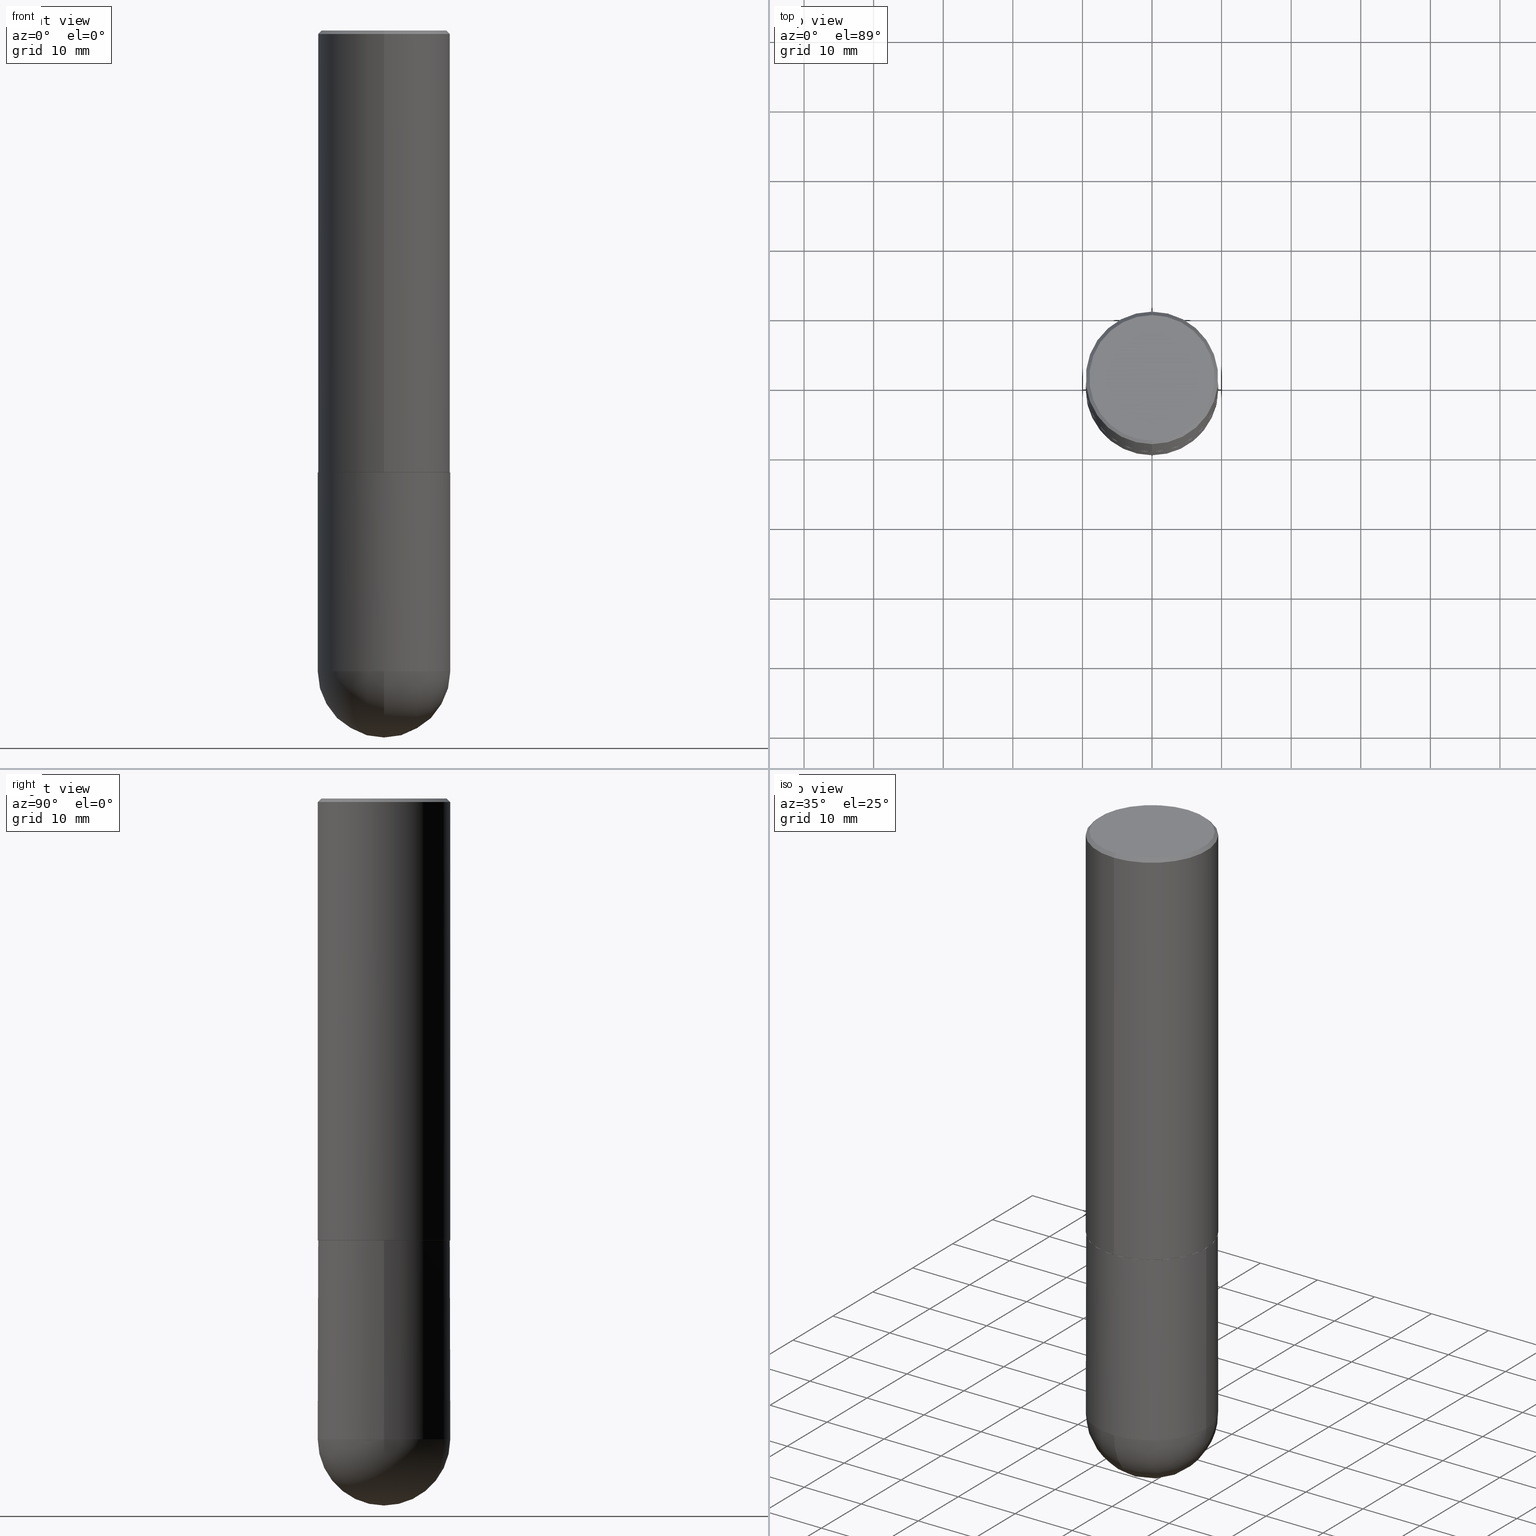
[diagram: canonical four-view strip — front | top / right | iso, engineering-drawing reading convention]
A machine part, canonical four-view strip (front | top / right | iso — engineering-drawing reading convention). The complete STEP part file that produces these views, byte-faithful:
ISO-10303-21;
HEADER;
FILE_DESCRIPTION (( 'STEP AP203' ),
    '1' );
FILE_NAME ('31165.STEP',
    '2024-02-21T16:49:30',
    ( '' ),
    ( '' ),
    'SwSTEP 2.0',
    'SolidWorks 2023',
    '' );
FILE_SCHEMA (( 'CONFIG_CONTROL_DESIGN' ));
ENDSEC;

DATA;
#1 = APPROVAL_PERSON_ORGANIZATION ( #397, #105, #244 ) ;
#2 = DIRECTION ( 'NONE',  ( -2.445468806185136597E-29, 3.491481338843145583E-15, 1.000000000000000000 ) ) ;
#3 = CARTESIAN_POINT ( 'NONE',  ( -0.3750000000000001110, 2.664535259100376486E-15, -1.844600658845590159E-29 ) ) ;
#4 = DIRECTION ( 'NONE',  ( 1.000000000000000000, -6.982962677686265922E-15, 4.883557194083112340E-29 ) ) ;
#5 = DIRECTION ( 'NONE',  ( -1.000000000000000000, 6.982962677686266711E-15, -4.883557194083113462E-29 ) ) ;
#6 = PRODUCT_RELATED_PRODUCT_CATEGORY ( 'detail', '', ( #218 ) ) ;
#7 = CC_DESIGN_APPROVAL ( #119, ( #386 ) ) ;
#8 = CARTESIAN_POINT ( 'NONE',  ( 4.891158429268078912E-31, -6.982646455320575000E-17, -0.02000000000000008715 ) ) ;
#9 = DIRECTION ( 'NONE',  ( -2.445468806185136597E-29, 3.491481338843145583E-15, 1.000000000000000000 ) ) ;
#10 = ORIENTED_EDGE ( 'NONE', *, *, #384, .F. ) ;
#11 = CLOSED_SHELL ( 'NONE', ( #18, #289, #12, #250, #148 ) ) ;
#12 = ADVANCED_FACE ( 'NONE', ( #86 ), #46, .T. ) ;
#13 = FACE_OUTER_BOUND ( 'NONE', #370, .T. ) ;
#14 = VERTEX_POINT ( 'NONE', #249 ) ;
#15 = DIRECTION ( 'NONE',  ( -6.982962677686266711E-15, -1.000000000000000000, 2.913971193241878794E-15 ) ) ;
#16 = ORIENTED_EDGE ( 'NONE', *, *, #225, .T. ) ;
#17 = ORIENTED_EDGE ( 'NONE', *, *, #356, .T. ) ;
#18 = ADVANCED_FACE ( 'NONE', ( #180 ), #347, .T. ) ;
#19 = AXIS2_PLACEMENT_3D ( 'NONE', #8, #39, #65 ) ;
#20 = CALENDAR_DATE ( 2024, 21, 2 ) ;
#21 = ORIENTED_EDGE ( 'NONE', *, *, #126, .F. ) ;
#22 = PERSON_AND_ORGANIZATION ( #143, #229 ) ;
#23 = CARTESIAN_POINT ( 'NONE',  ( 6.113948036585074240E-29, -8.728308069150681957E-15, -2.500000000000000000 ) ) ;
#24 = DIRECTION ( 'NONE',  ( -6.982962677686266711E-15, -1.000000000000000000, 2.921762560068730595E-15 ) ) ;
#25 = VECTOR ( 'NONE', #252, 39.37007874015748143 ) ;
#26 = CC_DESIGN_DATE_AND_TIME_ASSIGNMENT ( #172, #303, ( #386 ) ) ;
#27 = DIRECTION ( 'NONE',  ( 6.982962677686266711E-15, 1.000000000000000000, -2.913971193241878005E-15 ) ) ;
#28 = CARTESIAN_POINT ( 'NONE',  ( -2.572686749164323547E-15, -0.3750000000000001110, -0.01999999999999877570 ) ) ;
#29 = DIRECTION ( 'NONE',  ( -2.445579214634029192E-29, 3.491323227660272783E-15, 1.000000000000000000 ) ) ;
#30 = VECTOR ( 'NONE', #394, 39.37007874015748143 ) ;
#31 = DIRECTION ( 'NONE',  ( -2.445579214634029192E-29, 3.491323227660272783E-15, 1.000000000000000000 ) ) ;
#32 = EDGE_CURVE ( 'NONE', #393, #52, #278, .T. ) ;
#33 = DIRECTION ( 'NONE',  ( 6.982962677686265922E-15, 1.000000000000000000, 0.000000000000000000 ) ) ;
#34 = CIRCLE ( 'NONE', #272, 0.3750000000000002776 ) ;
#35 = ORIENTED_EDGE ( 'NONE', *, *, #294, .T. ) ;
#36 = CIRCLE ( 'NONE', #115, 0.3750000000000000555 ) ;
#37 = APPROVAL_PERSON_ORGANIZATION ( #82, #119, #375 ) ;
#38 = CARTESIAN_POINT ( 'NONE',  ( 6.111502457370440261E-29, -8.724816745923021924E-15, -2.499000000000000110 ) ) ;
#39 = DIRECTION ( 'NONE',  ( 2.445579214634029192E-29, -3.491323227660272783E-15, -1.000000000000000000 ) ) ;
#40 = ORIENTED_EDGE ( 'NONE', *, *, #233, .F. ) ;
#41 = ADVANCED_FACE ( 'NONE', ( #251 ), #302, .T. ) ;
#42 = CARTESIAN_POINT ( 'NONE',  ( 2.664535259100376486E-15, 0.3750000000000001665, -1.309246210372602885E-15 ) ) ;
#43 = VERTEX_POINT ( 'NONE', #110 ) ;
#44 = LOCAL_TIME ( 11, 49, 30.00000000000000000, #207 ) ;
#45 = APPROVAL_DATE_TIME ( #202, #119 ) ;
#46 = SPHERICAL_SURFACE ( 'NONE', #59, 0.3750000000000003886 ) ;
#47 = PERSON_AND_ORGANIZATION_ROLE ( 'creator' ) ;
#48 = DIRECTION ( 'NONE',  ( -6.982962677686266711E-15, -1.000000000000000000, 3.491323227660273572E-15 ) ) ;
#49 = CONICAL_SURFACE ( 'NONE', #285, 0.3739999999999999991, 0.7853981633976873100 ) ;
#50 = APPLICATION_PROTOCOL_DEFINITION ( 'international standard', 'config_control_design', 1994, #306 ) ;
#51 = ORIENTED_EDGE ( 'NONE', *, *, #214, .T. ) ;
#52 = VERTEX_POINT ( 'NONE', #211 ) ;
#53 = EDGE_CURVE ( 'NONE', #228, #52, #206, .T. ) ;
#54 = AXIS2_PLACEMENT_3D ( 'NONE', #291, #293, #168 ) ;
#55 = CARTESIAN_POINT ( 'NONE',  ( 2.664535259100408040E-15, 0.3749999999999915623, -2.499000000000001442 ) ) ;
#56 = DIRECTION ( 'NONE',  ( -6.982962677686266711E-15, -1.000000000000000000, 2.913971193241878794E-15 ) ) ;
#57 = EDGE_CURVE ( 'NONE', #178, #43, #156, .T. ) ;
#58 = DIRECTION ( 'NONE',  ( 2.438088387897960049E-29, -3.491481338843145188E-15, -1.000000000000000000 ) ) ;
#59 = AXIS2_PLACEMENT_3D ( 'NONE', #83, #114, #27 ) ;
#60 = AXIS2_PLACEMENT_3D ( 'NONE', #407, #85, #179 ) ;
#61 = CARTESIAN_POINT ( 'NONE',  ( 2.618611004132411153E-15, 0.3749999999999912847, -2.500000000000001332 ) ) ;
#62 = FACE_OUTER_BOUND ( 'NONE', #390, .T. ) ;
#63 = EDGE_CURVE ( 'NONE', #14, #398, #313, .T. ) ;
#64 =( LENGTH_UNIT ( ) NAMED_UNIT ( * ) SI_UNIT ( $, .METRE. ) );
#65 = DIRECTION ( 'NONE',  ( 6.982962677686265922E-15, 1.000000000000000000, -3.494488891895536035E-15 ) ) ;
#66 = AXIS2_PLACEMENT_3D ( 'NONE', #213, #80, #349 ) ;
#67 = ORIENTED_EDGE ( 'NONE', *, *, #199, .F. ) ;
#68 = AXIS2_PLACEMENT_3D ( 'NONE', #94, #5, #127 ) ;
#69 = CARTESIAN_POINT ( 'NONE',  ( 8.864824422421120163E-29, -1.265661985330640259E-14, -3.624999999999999556 ) ) ;
#70 = VERTEX_POINT ( 'NONE', #314 ) ;
#71 = CARTESIAN_POINT ( 'NONE',  ( -0.3750000000000001110, -8.028126341106758858E-15, -3.624999999999999556 ) ) ;
#72 = LINE ( 'NONE', #268, #81 ) ;
#73 = CIRCLE ( 'NONE', #151, 0.3750000000000003886 ) ;
#74 = EDGE_CURVE ( 'NONE', #43, #178, #216, .T. ) ;
#75 = CALENDAR_DATE ( 2024, 21, 2 ) ;
#76 = CARTESIAN_POINT ( 'NONE',  ( -4.800560604020196118E-45, 6.853308468732078299E-31, 1.962954450746990007E-16 ) ) ;
#77 = PERSON_AND_ORGANIZATION_ROLE ( 'design_supplier' ) ;
#78 = DIRECTION ( 'NONE',  ( -2.445579214634029192E-29, 3.491323227660272783E-15, 1.000000000000000000 ) ) ;
#79 = APPLICATION_PROTOCOL_DEFINITION ( 'international standard', 'config_control_design', 1994, #340 ) ;
#80 = DIRECTION ( 'NONE',  ( -1.000000000000000000, 7.105427357601001070E-15, -4.926315508542082329E-29 ) ) ;
#81 = VECTOR ( 'NONE', #135, 39.37007874015748143 ) ;
#82 = PERSON_AND_ORGANIZATION ( #143, #229 ) ;
#83 = CARTESIAN_POINT ( 'NONE',  ( 8.533704644507233916E-29, -1.313080222144645289E-14, -3.624999999999999556 ) ) ;
#84 = CC_DESIGN_PERSON_AND_ORGANIZATION_ASSIGNMENT ( #22, #142, ( #218 ) ) ;
#85 = DIRECTION ( 'NONE',  ( 0.000000000000000000, 0.000000000000000000, 1.000000000000000000 ) ) ;
#86 = FACE_OUTER_BOUND ( 'NONE', #174, .T. ) ;
#87 = LINE ( 'NONE', #120, #25 ) ;
#88 = CIRCLE ( 'NONE', #400, 0.3750000000000001110 ) ;
#89 = CARTESIAN_POINT ( 'NONE',  ( 8.864824422421120163E-29, -1.265661985330640259E-14, -3.624999999999999556 ) ) ;
#90 = DIRECTION ( 'NONE',  ( 6.982962677686265922E-15, 1.000000000000000000, -3.494488891895536035E-15 ) ) ;
#91 = CARTESIAN_POINT ( 'NONE',  ( 6.113948036585074240E-29, -8.728308069150681957E-15, -2.500000000000000000 ) ) ;
#92 = AXIS2_PLACEMENT_3D ( 'NONE', #117, #78, #374 ) ;
#93 = AXIS2_PLACEMENT_3D ( 'NONE', #323, #287, #155 ) ;
#94 = CARTESIAN_POINT ( 'NONE',  ( 8.533704644507233916E-29, -1.313080222144645289E-14, -3.624999999999999556 ) ) ;
#95 = EDGE_CURVE ( 'NONE', #98, #332, #173, .T. ) ;
#96 = DIRECTION ( 'NONE',  ( -2.445579214634029192E-29, 3.491323227660272783E-15, 1.000000000000000000 ) ) ;
#97 = CYLINDRICAL_SURFACE ( 'NONE', #247, 0.3750000000000001665 ) ;
#98 = VERTEX_POINT ( 'NONE', #144 ) ;
#99 = CONICAL_SURFACE ( 'NONE', #343, 0.3750000000000000555, 0.7853981633974479459 ) ;
#100 = EDGE_LOOP ( 'NONE', ( #107, #35 ) ) ;
#101 = ORIENTED_EDGE ( 'NONE', *, *, #233, .T. ) ;
#102 = DESIGN_CONTEXT ( 'detailed design', #340, 'design' ) ;
#103 = CYLINDRICAL_SURFACE ( 'NONE', #366, 0.3750000000000001665 ) ;
#104 = ORIENTED_EDGE ( 'NONE', *, *, #294, .F. ) ;
#105 = APPROVAL ( #241, 'UNSPECIFIED' ) ;
#106 = APPROVAL_STATUS ( 'not_yet_approved' ) ;
#107 = ORIENTED_EDGE ( 'NONE', *, *, #141, .T. ) ;
#108 = CIRCLE ( 'NONE', #93, 0.3739999999999999991 ) ;
#109 = APPROVAL_DATE_TIME ( #113, #130 ) ;
#110 = CARTESIAN_POINT ( 'NONE',  ( -2.504081769186607821E-15, -0.3549999999999997602, 1.435715190894094620E-15 ) ) ;
#111 = DATE_TIME_ROLE ( 'creation_date' ) ;
#112 = DIRECTION ( 'NONE',  ( -2.445579214634028911E-29, 3.491323227660273177E-15, 1.000000000000000000 ) ) ;
#113 = DATE_AND_TIME ( #341, #44 ) ;
#114 = DIRECTION ( 'NONE',  ( -1.000000000000000000, 6.982962677686266711E-15, -4.883557194083113462E-29 ) ) ;
#115 = AXIS2_PLACEMENT_3D ( 'NONE', #378, #215, #351 ) ;
#116 = MECHANICAL_CONTEXT ( 'NONE', #306, 'mechanical' ) ;
#117 = CARTESIAN_POINT ( 'NONE',  ( 4.891158429268078912E-31, -6.982646455320575000E-17, -0.02000000000000008715 ) ) ;
#118 = DIRECTION ( 'NONE',  ( 1.000000000000000000, -6.982962677686265922E-15, 4.876176775795935793E-29 ) ) ;
#119 = APPROVAL ( #106, 'UNSPECIFIED' ) ;
#120 = CARTESIAN_POINT ( 'NONE',  ( 0.3750000000000001110, -2.618611004132350411E-15, 1.828566290923476483E-29 ) ) ;
#121 = AXIS2_PLACEMENT_3D ( 'NONE', #324, #286, #185 ) ;
#122 = CIRCLE ( 'NONE', #175, 0.3750000000000002776 ) ;
#123 = DIRECTION ( 'NONE',  ( 1.000000000000000000, -6.982962677686265922E-15, 0.000000000000000000 ) ) ;
#124 = CARTESIAN_POINT ( 'NONE',  ( 8.864824422421120163E-29, -1.265661985330640259E-14, -3.624999999999999556 ) ) ;
#125 = FACE_OUTER_BOUND ( 'NONE', #140, .T. ) ;
#126 = EDGE_CURVE ( 'NONE', #228, #296, #34, .T. ) ;
#127 = DIRECTION ( 'NONE',  ( 6.982962677686266711E-15, 1.000000000000000000, -2.913971193241878005E-15 ) ) ;
#128 = CARTESIAN_POINT ( 'NONE',  ( 2.660982545421636724E-15, 0.3739999999999912839, -2.500000000000001332 ) ) ;
#129 = ORIENTED_EDGE ( 'NONE', *, *, #384, .T. ) ;
#130 = APPROVAL ( #236, 'UNSPECIFIED' ) ;
#131 = CARTESIAN_POINT ( 'NONE',  ( 2.618611004132350411E-15, 0.3749999999999999445, -0.02000000000000139513 ) ) ;
#132 = EDGE_LOOP ( 'NONE', ( #67, #51, #101, #270, #104 ) ) ;
#133 =( NAMED_UNIT ( * ) SI_UNIT ( $, .STERADIAN. ) SOLID_ANGLE_UNIT ( ) );
#134 = ORIENTED_EDGE ( 'NONE', *, *, #356, .F. ) ;
#135 = DIRECTION ( 'NONE',  ( 4.937700262164545676E-15, 0.7071067811865447972, -0.7071067811865502373 ) ) ;
#136 = ORIENTED_EDGE ( 'NONE', *, *, #95, .F. ) ;
#137 = EDGE_CURVE ( 'NONE', #52, #393, #253, .T. ) ;
#138 = ORIENTED_EDGE ( 'NONE', *, *, #388, .F. ) ;
#139 = AXIS2_PLACEMENT_3D ( 'NONE', #321, #31, #219 ) ;
#140 = EDGE_LOOP ( 'NONE', ( #404, #410, #337, #136 ) ) ;
#141 = EDGE_CURVE ( 'NONE', #246, #292, #379, .T. ) ;
#142 = PERSON_AND_ORGANIZATION_ROLE ( 'design_owner' ) ;
#143 = PERSON ( 'UNSPECIFIED', 'UNSPECIFIED', 'UNSPECIFIED', ('UNSPECIFIED'), ('UNSPECIFIED'), ('UNSPECIFIED') ) ;
#144 = CARTESIAN_POINT ( 'NONE',  ( 2.618611004132438763E-15, 0.3749999999999873990, -3.625000000000000888 ) ) ;
#145 = VERTEX_POINT ( 'NONE', #382 ) ;
#146 = VECTOR ( 'NONE', #112, 39.37007874015748143 ) ;
#147 = DIRECTION ( 'NONE',  ( -2.445468806185136597E-29, 3.491481338843145583E-15, 1.000000000000000000 ) ) ;
#148 = ADVANCED_FACE ( 'NONE', ( #222 ), #385, .T. ) ;
#149 = FACE_OUTER_BOUND ( 'NONE', #176, .T. ) ;
#150 = CARTESIAN_POINT ( 'NONE',  ( 6.113948036585074240E-29, -8.728308069150681957E-15, -2.500000000000000000 ) ) ;
#151 = AXIS2_PLACEMENT_3D ( 'NONE', #154, #4, #33 ) ;
#152 = DIRECTION ( 'NONE',  ( -2.445468806185136597E-29, 3.491481338843145583E-15, 1.000000000000000000 ) ) ;
#153 = EDGE_CURVE ( 'NONE', #70, #246, #87, .T. ) ;
#154 = CARTESIAN_POINT ( 'NONE',  ( 8.533704644507233916E-29, -1.313080222144645289E-14, -3.624999999999999556 ) ) ;
#155 = DIRECTION ( 'NONE',  ( -6.982962677686266711E-15, -1.000000000000000000, 2.921762560068730595E-15 ) ) ;
#156 = CIRCLE ( 'NONE', #399, 0.3549999999999997602 ) ;
#157 = CIRCLE ( 'NONE', #181, 0.3739999999999999991 ) ;
#158 = LINE ( 'NONE', #227, #187 ) ;
#159 = EDGE_LOOP ( 'NONE', ( #134, #16, #238, #10 ) ) ;
#160 = PRODUCT_DEFINITION ( 'UNKNOWN', '', #408, #102 ) ;
#161 = LINE ( 'NONE', #42, #304 ) ;
#162 = ORIENTED_EDGE ( 'NONE', *, *, #277, .T. ) ;
#163 = ORIENTED_EDGE ( 'NONE', *, *, #299, .F. ) ;
#164 = UNCERTAINTY_MEASURE_WITH_UNIT (LENGTH_MEASURE( 1.000000000000000082E-05 ), #325, 'distance_accuracy_value', 'NONE');
#165 = LINE ( 'NONE', #196, #30 ) ;
#166 = LOCAL_TIME ( 11, 49, 30.00000000000000000, #338 ) ;
#167 = CC_DESIGN_DATE_AND_TIME_ASSIGNMENT ( #346, #111, ( #160 ) ) ;
#168 = DIRECTION ( 'NONE',  ( 6.982962677686265922E-15, 1.000000000000000000, -3.491323227660273177E-15 ) ) ;
#169 = ORIENTED_EDGE ( 'NONE', *, *, #74, .T. ) ;
#170 = COORDINATED_UNIVERSAL_TIME_OFFSET ( 5, 0, .BEHIND. ) ;
#171 = CARTESIAN_POINT ( 'NONE',  ( -4.800560604020196118E-45, 6.853308468732078299E-31, 1.962954450746990007E-16 ) ) ;
#172 = DATE_AND_TIME ( #204, #182 ) ;
#173 = CIRCLE ( 'NONE', #327, 0.3750000000000001110 ) ;
#174 = EDGE_LOOP ( 'NONE', ( #197, #162, #409, #40 ) ) ;
#175 = AXIS2_PLACEMENT_3D ( 'NONE', #38, #194, #15 ) ;
#176 = EDGE_LOOP ( 'NONE', ( #203, #17, #21, #263 ) ) ;
#177 = APPROVAL_DATE_TIME ( #275, #105 ) ;
#178 = VERTEX_POINT ( 'NONE', #224 ) ;
#179 = DIRECTION ( 'NONE',  ( 1.000000000000000000, 0.000000000000000000, 0.000000000000000000 ) ) ;
#180 = FACE_OUTER_BOUND ( 'NONE', #395, .T. ) ;
#181 = AXIS2_PLACEMENT_3D ( 'NONE', #150, #284, #288 ) ;
#182 = LOCAL_TIME ( 11, 49, 30.00000000000000000, #401 ) ;
#183 = PRODUCT_DEFINITION_SHAPE ( 'NONE', 'NONE',  #160 ) ;
#184 = LINE ( 'NONE', #28, #392 ) ;
#185 = DIRECTION ( 'NONE',  ( 1.000000000000000000, -6.982962677686264344E-15, 0.000000000000000000 ) ) ;
#186 = DIRECTION ( 'NONE',  ( -1.000000000000000000, 6.982962677686265922E-15, -4.876176775795935793E-29 ) ) ;
#187 = VECTOR ( 'NONE', #298, 39.37007874015748143 ) ;
#188 = DIRECTION ( 'NONE',  ( -2.445579214634029192E-29, 3.491323227660272783E-15, 1.000000000000000000 ) ) ;
#189 = PLANE ( 'NONE',  #237 ) ;
#190 = LENGTH_MEASURE_WITH_UNIT ( LENGTH_MEASURE( 0.02539999999999999897 ), #64 );
#191 = ORIENTED_EDGE ( 'NONE', *, *, #95, .T. ) ;
#192 = AXIS2_PLACEMENT_3D ( 'NONE', #171, #208, #344 ) ;
#193 = CIRCLE ( 'NONE', #209, 0.3750000000000001110 ) ;
#194 = DIRECTION ( 'NONE',  ( -2.445579214634029192E-29, 3.491323227660272783E-15, 1.000000000000000000 ) ) ;
#195 = ORIENTED_EDGE ( 'NONE', *, *, #225, .F. ) ;
#196 = CARTESIAN_POINT ( 'NONE',  ( -2.611628041454602471E-15, -0.3740000000000087699, -2.499999999999999112 ) ) ;
#197 = ORIENTED_EDGE ( 'NONE', *, *, #63, .F. ) ;
#198 = ORIENTED_EDGE ( 'NONE', *, *, #199, .T. ) ;
#199 = EDGE_CURVE ( 'NONE', #332, #292, #380, .T. ) ;
#200 = CARTESIAN_POINT ( 'NONE',  ( 6.113948036585074240E-29, -8.728308069150681957E-15, -2.500000000000000000 ) ) ;
#201 = ORIENTED_EDGE ( 'NONE', *, *, #57, .F. ) ;
#202 = DATE_AND_TIME ( #20, #239 ) ;
#203 = ORIENTED_EDGE ( 'NONE', *, *, #283, .T. ) ;
#204 = CALENDAR_DATE ( 2024, 21, 2 ) ;
#205 = CC_DESIGN_PERSON_AND_ORGANIZATION_ASSIGNMENT ( #369, #300, ( #160 ) ) ;
#206 = LINE ( 'NONE', #342, #146 ) ;
#207 = COORDINATED_UNIVERSAL_TIME_OFFSET ( 5, 0, .BEHIND. ) ;
#208 = DIRECTION ( 'NONE',  ( -2.445579214634029192E-29, 3.491323227660272783E-15, 1.000000000000000000 ) ) ;
#209 = AXIS2_PLACEMENT_3D ( 'NONE', #124, #2, #123 ) ;
#210 = PERSON_AND_ORGANIZATION_ROLE ( 'classification_officer' ) ;
#211 = CARTESIAN_POINT ( 'NONE',  ( -2.572686749164323547E-15, -0.3750000000000001110, -0.01999999999999877570 ) ) ;
#212 = COORDINATED_UNIVERSAL_TIME_OFFSET ( 5, 0, .BEHIND. ) ;
#213 = CARTESIAN_POINT ( 'NONE',  ( 8.533704644507233916E-29, -1.313080222144645289E-14, -3.624999999999999556 ) ) ;
#214 = EDGE_CURVE ( 'NONE', #332, #398, #88, .T. ) ;
#215 = DIRECTION ( 'NONE',  ( -2.445468806185136597E-29, 3.491481338843145583E-15, 1.000000000000000000 ) ) ;
#216 = CIRCLE ( 'NONE', #192, 0.3549999999999997602 ) ;
#217 = AXIS2_PLACEMENT_3D ( 'NONE', #317, #383, #352 ) ;
#218 = PRODUCT ( '31165', '31165', '', ( #116 ) ) ;
#219 = DIRECTION ( 'NONE',  ( -6.982962677686265922E-15, -1.000000000000000000, 3.494488891895536035E-15 ) ) ;
#220 = CARTESIAN_POINT ( 'NONE',  ( 0.3750000000000000555, -1.134731435124021338E-14, -2.500000000000000000 ) ) ;
#221 = ADVANCED_FACE ( 'NONE', ( #149 ), #49, .T. ) ;
#222 = FACE_OUTER_BOUND ( 'NONE', #132, .T. ) ;
#223 = APPROVAL_PERSON_ORGANIZATION ( #312, #130, #271 ) ;
#224 = CARTESIAN_POINT ( 'NONE',  ( 2.548781377355486718E-15, 0.3549999999999997602, -1.043124300744697013E-15 ) ) ;
#225 = EDGE_CURVE ( 'NONE', #402, #145, #157, .T. ) ;
#226 = FACE_OUTER_BOUND ( 'NONE', #235, .T. ) ;
#227 = CARTESIAN_POINT ( 'NONE',  ( 2.657429831742835431E-15, 0.3739999999999912839, -2.500000000000001332 ) ) ;
#228 = VERTEX_POINT ( 'NONE', #357 ) ;
#229 = ORGANIZATION ( 'UNSPECIFIED', 'UNSPECIFIED', '' ) ;
#230 =( NAMED_UNIT ( * ) PLANE_ANGLE_UNIT ( ) SI_UNIT ( $, .RADIAN. ) );
#231 = ORIENTED_EDGE ( 'NONE', *, *, #137, .F. ) ;
#232 = ORIENTED_EDGE ( 'NONE', *, *, #32, .F. ) ;
#233 = EDGE_CURVE ( 'NONE', #398, #70, #193, .T. ) ;
#234 = DIRECTION ( 'NONE',  ( 1.000000000000000000, -6.982962677686265922E-15, 0.000000000000000000 ) ) ;
#235 = EDGE_LOOP ( 'NONE', ( #362, #169 ) ) ;
#236 = APPROVAL_STATUS ( 'not_yet_approved' ) ;
#237 = AXIS2_PLACEMENT_3D ( 'NONE', #61, #58, #186 ) ;
#238 = ORIENTED_EDGE ( 'NONE', *, *, #396, .T. ) ;
#239 = LOCAL_TIME ( 11, 49, 30.00000000000000000, #212 ) ;
#240 = ADVANCED_FACE ( 'NONE', ( #62 ), #99, .T. ) ;
#241 = APPROVAL_STATUS ( 'not_yet_approved' ) ;
#242 = ORIENTED_EDGE ( 'NONE', *, *, #153, .F. ) ;
#243 = EDGE_LOOP ( 'NONE', ( #339, #129, #307, #232 ) ) ;
#244 = APPROVAL_ROLE ( '' ) ;
#245 = CLOSED_SHELL ( 'NONE', ( #221, #308, #358, #240, #345, #41, #411, #371 ) ) ;
#246 = VERTEX_POINT ( 'NONE', #220 ) ;
#247 = AXIS2_PLACEMENT_3D ( 'NONE', #331, #96, #364 ) ;
#248 = PERSON_AND_ORGANIZATION ( #143, #229 ) ;
#249 = CARTESIAN_POINT ( 'NONE',  ( 9.466789814748773816E-29, -1.441714559602862136E-14, -4.000000000000000000 ) ) ;
#250 = ADVANCED_FACE ( 'NONE', ( #353 ), #189, .F. ) ;
#251 = FACE_OUTER_BOUND ( 'NONE', #159, .T. ) ;
#252 = DIRECTION ( 'NONE',  ( -2.445468806185136877E-29, 3.491481338843145188E-15, 1.000000000000000000 ) ) ;
#253 = CIRCLE ( 'NONE', #139, 0.3750000000000000555 ) ;
#254 = AXIS2_PLACEMENT_3D ( 'NONE', #69, #9, #234 ) ;
#255 = DIRECTION ( 'NONE',  ( 2.445579214634029192E-29, -3.491323227660272783E-15, -1.000000000000000000 ) ) ;
#256 = DIMENSIONAL_EXPONENTS ( 1.000000000000000000, 0.000000000000000000, 0.000000000000000000, 0.000000000000000000, 0.000000000000000000, 0.000000000000000000, 0.000000000000000000 ) ;
#257 = CARTESIAN_POINT ( 'NONE',  ( -0.3750000000000000555, -8.028126341106755702E-15, -2.500000000000000000 ) ) ;
#258 = SPHERICAL_SURFACE ( 'NONE', #68, 0.3750000000000003886 ) ;
#259 = AXIS2_PLACEMENT_3D ( 'NONE', #279, #147, #118 ) ;
#260 = CIRCLE ( 'NONE', #254, 0.3750000000000001110 ) ;
#261 = PLANE ( 'NONE',  #335 ) ;
#262 = DIRECTION ( 'NONE',  ( -2.445579214634028631E-29, 3.491323227660273177E-15, 1.000000000000000000 ) ) ;
#263 = ORIENTED_EDGE ( 'NONE', *, *, #396, .F. ) ;
#264 = FACE_OUTER_BOUND ( 'NONE', #329, .T. ) ;
#265 = ORIENTED_EDGE ( 'NONE', *, *, #141, .F. ) ;
#266 = DIRECTION ( 'NONE',  ( -4.851104656540961908E-15, -0.7071067811865496822, -0.7071067811865453523 ) ) ;
#267 = ORIENTED_EDGE ( 'NONE', *, *, #74, .F. ) ;
#268 = CARTESIAN_POINT ( 'NONE',  ( 2.618611004132350411E-15, 0.3749999999999999445, -0.02000000000000139513 ) ) ;
#269 = PERSON_AND_ORGANIZATION ( #143, #229 ) ;
#270 = ORIENTED_EDGE ( 'NONE', *, *, #153, .T. ) ;
#271 = APPROVAL_ROLE ( '' ) ;
#272 = AXIS2_PLACEMENT_3D ( 'NONE', #276, #188, #56 ) ;
#273 = DIRECTION ( 'NONE',  ( 1.000000000000000000, -6.982962677686265922E-15, 0.000000000000000000 ) ) ;
#274 = EDGE_LOOP ( 'NONE', ( #326, #363, #231, #334 ) ) ;
#275 = DATE_AND_TIME ( #405, #315 ) ;
#276 = CARTESIAN_POINT ( 'NONE',  ( 6.111502457370440261E-29, -8.724816745923021924E-15, -2.499000000000000110 ) ) ;
#277 = EDGE_CURVE ( 'NONE', #14, #98, #73, .T. ) ;
#278 = CIRCLE ( 'NONE', #92, 0.3750000000000000555 ) ;
#279 = CARTESIAN_POINT ( 'NONE',  ( 0.000000000000000000, 0.000000000000000000, 0.000000000000000000 ) ) ;
#280 = CC_DESIGN_APPROVAL ( #130, ( #408 ) ) ;
#281 = CARTESIAN_POINT ( 'NONE',  ( 8.864824422421120163E-29, -1.265661985330640259E-14, -3.624999999999999556 ) ) ;
#282 = DIRECTION ( 'NONE',  ( -6.982962677686266711E-15, -1.000000000000000000, 2.921762560068730595E-15 ) ) ;
#283 = EDGE_CURVE ( 'NONE', #145, #402, #108, .T. ) ;
#284 = DIRECTION ( 'NONE',  ( -2.445579214634029192E-29, 3.491323227660272783E-15, 1.000000000000000000 ) ) ;
#285 = AXIS2_PLACEMENT_3D ( 'NONE', #91, #29, #282 ) ;
#286 = DIRECTION ( 'NONE',  ( -2.445468806185136597E-29, 3.491481338843145583E-15, 1.000000000000000000 ) ) ;
#287 = DIRECTION ( 'NONE',  ( -2.445579214634029192E-29, 3.491323227660272783E-15, 1.000000000000000000 ) ) ;
#288 = DIRECTION ( 'NONE',  ( -6.982962677686266711E-15, -1.000000000000000000, 2.921762560068730595E-15 ) ) ;
#289 = ADVANCED_FACE ( 'NONE', ( #125 ), #258, .T. ) ;
#290 = AXIS2_PLACEMENT_3D ( 'NONE', #23, #309, #24 ) ;
#291 = CARTESIAN_POINT ( 'NONE',  ( 2.478951750578623026E-15, 0.3549999999999997602, -1.141272023282046267E-15 ) ) ;
#292 = VERTEX_POINT ( 'NONE', #257 ) ;
#293 = DIRECTION ( 'NONE',  ( 2.445579214634028631E-29, -3.491323227660273177E-15, -1.000000000000000000 ) ) ;
#294 = EDGE_CURVE ( 'NONE', #292, #246, #36, .T. ) ;
#295 = CARTESIAN_POINT ( 'NONE',  ( 0.000000000000000000, 0.000000000000000000, 0.000000000000000000 ) ) ;
#296 = VERTEX_POINT ( 'NONE', #55 ) ;
#297 = PLANE ( 'NONE',  #54 ) ;
#298 = DIRECTION ( 'NONE',  ( 5.024295867789263036E-15, 0.7071067811867189912, 0.7071067811863760433 ) ) ;
#299 = EDGE_CURVE ( 'NONE', #43, #52, #184, .T. ) ;
#300 = PERSON_AND_ORGANIZATION_ROLE ( 'creator' ) ;
#301 = DIRECTION ( 'NONE',  ( -2.445468806185136597E-29, 3.491481338843145583E-15, 1.000000000000000000 ) ) ;
#302 = CONICAL_SURFACE ( 'NONE', #290, 0.3739999999999999991, 0.7853981633976873100 ) ;
#303 = DATE_TIME_ROLE ( 'classification_date' ) ;
#304 = VECTOR ( 'NONE', #361, 39.37007874015748143 ) ;
#305 = ORIENTED_EDGE ( 'NONE', *, *, #283, .F. ) ;
#306 = APPLICATION_CONTEXT ( 'configuration controlled 3d designs of mechanical parts and assemblies' ) ;
#307 = ORIENTED_EDGE ( 'NONE', *, *, #53, .T. ) ;
#308 = ADVANCED_FACE ( 'NONE', ( #387 ), #103, .T. ) ;
#309 = DIRECTION ( 'NONE',  ( -2.445579214634029192E-29, 3.491323227660272783E-15, 1.000000000000000000 ) ) ;
#310 = MANIFOLD_SOLID_BREP ( 'Body-Move/Copy2[1]', #11 ) ;
#311 = MANIFOLD_SOLID_BREP ( 'Body-Move/Copy2[2]', #245 ) ;
#312 = PERSON_AND_ORGANIZATION ( #143, #229 ) ;
#313 = CIRCLE ( 'NONE', #66, 0.3750000000000003886 ) ;
#314 = CARTESIAN_POINT ( 'NONE',  ( 0.3750000000000001110, -1.331127260433948773E-14, -3.624999999999999556 ) ) ;
#315 = LOCAL_TIME ( 11, 49, 30.00000000000000000, #170 ) ;
#316 = CC_DESIGN_SECURITY_CLASSIFICATION ( #386, ( #408 ) ) ;
#317 = CARTESIAN_POINT ( 'NONE',  ( 0.000000000000000000, 0.000000000000000000, 0.000000000000000000 ) ) ;
#318 = EDGE_CURVE ( 'NONE', #296, #393, #161, .T. ) ;
#319 = DIRECTION ( 'NONE',  ( 1.000000000000000000, -6.982962677686265922E-15, 0.000000000000000000 ) ) ;
#320 = ADVANCED_BREP_SHAPE_REPRESENTATION ( '31165', ( #310, #311, #60 ), #322 ) ;
#321 = CARTESIAN_POINT ( 'NONE',  ( 4.891158429268078912E-31, -6.982646455320575000E-17, -0.02000000000000008715 ) ) ;
#322 =( GEOMETRIC_REPRESENTATION_CONTEXT ( 3 ) GLOBAL_UNCERTAINTY_ASSIGNED_CONTEXT ( ( #164 ) ) GLOBAL_UNIT_ASSIGNED_CONTEXT ( ( #325, #230, #133 ) ) REPRESENTATION_CONTEXT ( 'NONE', 'WORKASPACE' ) );
#323 = CARTESIAN_POINT ( 'NONE',  ( 6.113948036585074240E-29, -8.728308069150681957E-15, -2.500000000000000000 ) ) ;
#324 = CARTESIAN_POINT ( 'NONE',  ( 6.113672015462842613E-29, -8.728703347107864943E-15, -2.500000000000000000 ) ) ;
#325 =( CONVERSION_BASED_UNIT ( 'INCH', #190 ) LENGTH_UNIT ( ) NAMED_UNIT ( #256 ) );
#326 = ORIENTED_EDGE ( 'NONE', *, *, #126, .T. ) ;
#327 = AXIS2_PLACEMENT_3D ( 'NONE', #281, #301, #273 ) ;
#328 = CARTESIAN_POINT ( 'NONE',  ( -2.664535259100290106E-15, -0.3750000000000131006, -3.624999999999998668 ) ) ;
#329 = EDGE_LOOP ( 'NONE', ( #305, #195 ) ) ;
#330 = CC_DESIGN_PERSON_AND_ORGANIZATION_ASSIGNMENT ( #372, #210, ( #386 ) ) ;
#331 = CARTESIAN_POINT ( 'NONE',  ( 0.000000000000000000, 0.000000000000000000, 0.000000000000000000 ) ) ;
#332 = VERTEX_POINT ( 'NONE', #71 ) ;
#333 = FACE_OUTER_BOUND ( 'NONE', #243, .T. ) ;
#334 = ORIENTED_EDGE ( 'NONE', *, *, #53, .F. ) ;
#335 = AXIS2_PLACEMENT_3D ( 'NONE', #200, #262, #336 ) ;
#336 = DIRECTION ( 'NONE',  ( -6.982962677686265922E-15, -1.000000000000000000, 3.491323227660273177E-15 ) ) ;
#337 = ORIENTED_EDGE ( 'NONE', *, *, #214, .F. ) ;
#338 = COORDINATED_UNIVERSAL_TIME_OFFSET ( 5, 0, .BEHIND. ) ;
#339 = ORIENTED_EDGE ( 'NONE', *, *, #318, .F. ) ;
#340 = APPLICATION_CONTEXT ( 'configuration controlled 3d designs of mechanical parts and assemblies' ) ;
#341 = CALENDAR_DATE ( 2024, 21, 2 ) ;
#342 = CARTESIAN_POINT ( 'NONE',  ( -2.618611004132351200E-15, -0.3750000000000001665, 1.309246210372602885E-15 ) ) ;
#343 = AXIS2_PLACEMENT_3D ( 'NONE', #354, #255, #90 ) ;
#344 = DIRECTION ( 'NONE',  ( -6.982962677686266711E-15, -1.000000000000000000, 3.491323227660273572E-15 ) ) ;
#345 = ADVANCED_FACE ( 'NONE', ( #333 ), #97, .T. ) ;
#346 = DATE_AND_TIME ( #75, #166 ) ;
#347 = CYLINDRICAL_SURFACE ( 'NONE', #259, 0.3750000000000001110 ) ;
#348 = SHAPE_DEFINITION_REPRESENTATION ( #183, #320 ) ;
#349 = DIRECTION ( 'NONE',  ( -7.105427357600999492E-15, -1.000000000000000000, 0.000000000000000000 ) ) ;
#350 = EDGE_CURVE ( 'NONE', #70, #98, #260, .T. ) ;
#351 = DIRECTION ( 'NONE',  ( 1.000000000000000000, -6.982962677686264344E-15, 0.000000000000000000 ) ) ;
#352 = DIRECTION ( 'NONE',  ( 1.000000000000000000, -6.982962677686265922E-15, 4.876176775795935793E-29 ) ) ;
#353 = FACE_OUTER_BOUND ( 'NONE', #100, .T. ) ;
#354 = CARTESIAN_POINT ( 'NONE',  ( 4.891158429268078912E-31, -6.982646455320575000E-17, -0.02000000000000008715 ) ) ;
#355 = CC_DESIGN_APPROVAL ( #105, ( #160 ) ) ;
#356 = EDGE_CURVE ( 'NONE', #402, #296, #158, .T. ) ;
#357 = CARTESIAN_POINT ( 'NONE',  ( -2.618611004132290852E-15, -0.3750000000000090483, -2.498999999999999222 ) ) ;
#358 = ADVANCED_FACE ( 'NONE', ( #13 ), #381, .T. ) ;
#359 = DIRECTION ( 'NONE',  ( -2.445579214634029192E-29, 3.491323227660272783E-15, 1.000000000000000000 ) ) ;
#360 = ORIENTED_EDGE ( 'NONE', *, *, #350, .T. ) ;
#361 = DIRECTION ( 'NONE',  ( -2.445579214634028911E-29, 3.491323227660273177E-15, 1.000000000000000000 ) ) ;
#362 = ORIENTED_EDGE ( 'NONE', *, *, #57, .T. ) ;
#363 = ORIENTED_EDGE ( 'NONE', *, *, #318, .T. ) ;
#364 = DIRECTION ( 'NONE',  ( -6.982962677686266711E-15, -1.000000000000000000, 3.491323227660272783E-15 ) ) ;
#365 = ORIENTED_EDGE ( 'NONE', *, *, #388, .T. ) ;
#366 = AXIS2_PLACEMENT_3D ( 'NONE', #295, #359, #389 ) ;
#367 = SECURITY_CLASSIFICATION_LEVEL ( 'unclassified' ) ;
#368 = ORIENTED_EDGE ( 'NONE', *, *, #32, .T. ) ;
#369 = PERSON_AND_ORGANIZATION ( #143, #229 ) ;
#370 = EDGE_LOOP ( 'NONE', ( #267, #406, #391, #138 ) ) ;
#371 = ADVANCED_FACE ( 'NONE', ( #226 ), #297, .F. ) ;
#372 = PERSON_AND_ORGANIZATION ( #143, #229 ) ;
#373 = VECTOR ( 'NONE', #412, 39.37007874015748143 ) ;
#374 = DIRECTION ( 'NONE',  ( -6.982962677686265922E-15, -1.000000000000000000, 3.494488891895536035E-15 ) ) ;
#375 = APPROVAL_ROLE ( '' ) ;
#376 = DIRECTION ( 'NONE',  ( -2.445579214634029192E-29, 3.491323227660272783E-15, 1.000000000000000000 ) ) ;
#377 = CC_DESIGN_PERSON_AND_ORGANIZATION_ASSIGNMENT ( #269, #47, ( #408 ) ) ;
#378 = CARTESIAN_POINT ( 'NONE',  ( 6.113672015462842613E-29, -8.728703347107864943E-15, -2.500000000000000000 ) ) ;
#379 = CIRCLE ( 'NONE', #121, 0.3750000000000000555 ) ;
#380 = LINE ( 'NONE', #3, #373 ) ;
#381 = CONICAL_SURFACE ( 'NONE', #19, 0.3750000000000000555, 0.7853981633974479459 ) ;
#382 = CARTESIAN_POINT ( 'NONE',  ( -2.611628041454602471E-15, -0.3740000000000087699, -2.499999999999999112 ) ) ;
#383 = DIRECTION ( 'NONE',  ( -2.445468806185136597E-29, 3.491481338843145583E-15, 1.000000000000000000 ) ) ;
#384 = EDGE_CURVE ( 'NONE', #296, #228, #122, .T. ) ;
#385 = CYLINDRICAL_SURFACE ( 'NONE', #217, 0.3750000000000001110 ) ;
#386 = SECURITY_CLASSIFICATION ( '', '', #367 ) ;
#387 = FACE_OUTER_BOUND ( 'NONE', #274, .T. ) ;
#388 = EDGE_CURVE ( 'NONE', #178, #393, #72, .T. ) ;
#389 = DIRECTION ( 'NONE',  ( -6.982962677686266711E-15, -1.000000000000000000, 3.491323227660272783E-15 ) ) ;
#390 = EDGE_LOOP ( 'NONE', ( #163, #201, #365, #368 ) ) ;
#391 = ORIENTED_EDGE ( 'NONE', *, *, #137, .T. ) ;
#392 = VECTOR ( 'NONE', #266, 39.37007874015748143 ) ;
#393 = VERTEX_POINT ( 'NONE', #131 ) ;
#394 = DIRECTION ( 'NONE',  ( -4.937700262165728178E-15, -0.7071067811867141062, 0.7071067811863809283 ) ) ;
#395 = EDGE_LOOP ( 'NONE', ( #191, #198, #265, #242, #360 ) ) ;
#396 = EDGE_CURVE ( 'NONE', #145, #228, #165, .T. ) ;
#397 = PERSON_AND_ORGANIZATION ( #143, #229 ) ;
#398 = VERTEX_POINT ( 'NONE', #328 ) ;
#399 = AXIS2_PLACEMENT_3D ( 'NONE', #76, #376, #48 ) ;
#400 = AXIS2_PLACEMENT_3D ( 'NONE', #89, #152, #319 ) ;
#401 = COORDINATED_UNIVERSAL_TIME_OFFSET ( 5, 0, .BEHIND. ) ;
#402 = VERTEX_POINT ( 'NONE', #128 ) ;
#403 = CC_DESIGN_PERSON_AND_ORGANIZATION_ASSIGNMENT ( #248, #77, ( #408 ) ) ;
#404 = ORIENTED_EDGE ( 'NONE', *, *, #277, .F. ) ;
#405 = CALENDAR_DATE ( 2024, 21, 2 ) ;
#406 = ORIENTED_EDGE ( 'NONE', *, *, #299, .T. ) ;
#407 = CARTESIAN_POINT ( 'NONE',  ( 0.000000000000000000, 0.000000000000000000, 0.000000000000000000 ) ) ;
#408 = PRODUCT_DEFINITION_FORMATION_WITH_SPECIFIED_SOURCE ( 'ANY', '', #218, .NOT_KNOWN. ) ;
#409 = ORIENTED_EDGE ( 'NONE', *, *, #350, .F. ) ;
#410 = ORIENTED_EDGE ( 'NONE', *, *, #63, .T. ) ;
#411 = ADVANCED_FACE ( 'NONE', ( #264 ), #261, .F. ) ;
#412 = DIRECTION ( 'NONE',  ( -2.445468806185136877E-29, 3.491481338843145188E-15, 1.000000000000000000 ) ) ;
ENDSEC;
END-ISO-10303-21;
